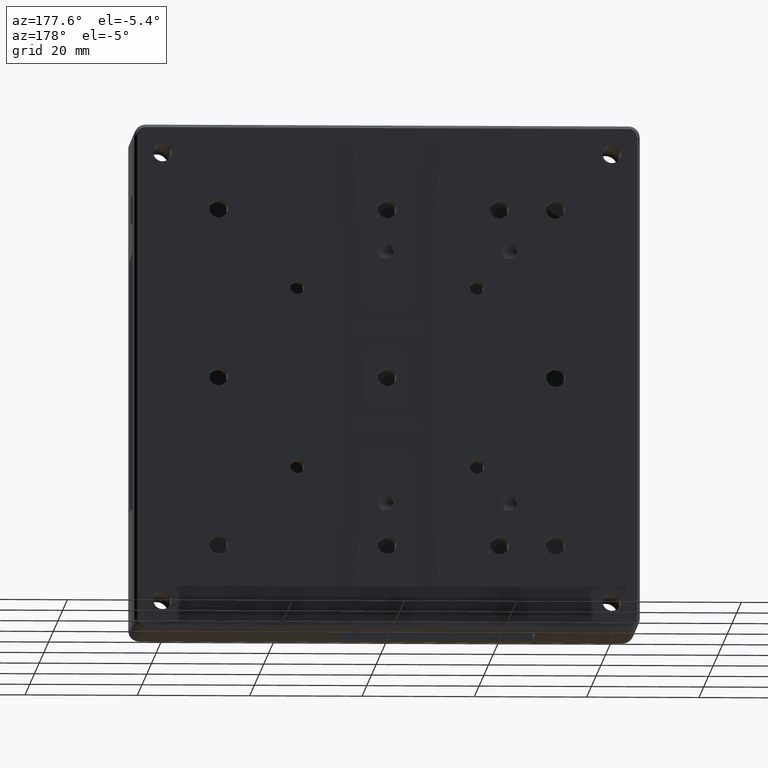
[diagram: clean part render]
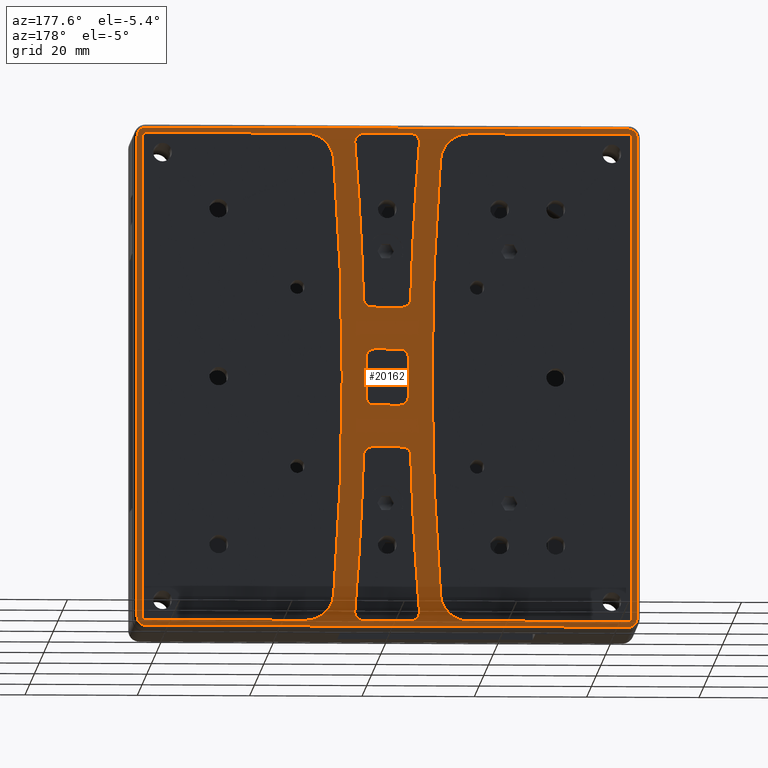
[diagram: same view with one face highlighted and labeled with its STEP entity id]
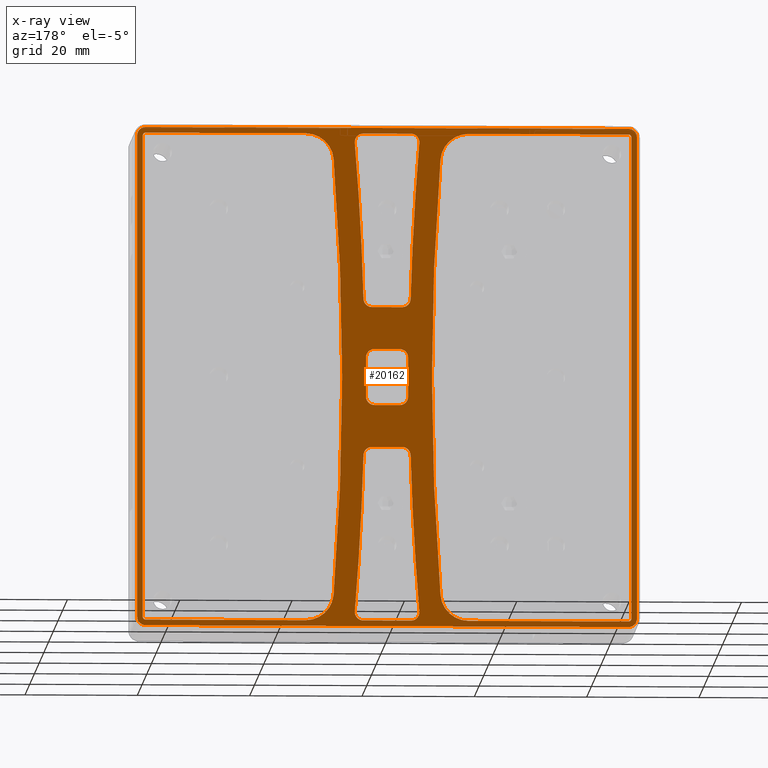
[diagram: x-ray of the same camera — body ghosted, the highlighted face saturated]
A machine part, auxiliary view. The second image highlights one B-rep face of the part: STEP entity #20162.
The next image is the same camera in x-ray: the body ghosted, the highlighted face saturated — about 0% of this face is hidden behind the body in this view.
In plain terms, the highlighted planar face has unit normal (-0, 1, 0).
Its self-contained STEP definition (entity closure, byte-faithful):
#87 = FACE_BOUND ( 'NONE', #9051, .T. ) ;
#194 = VERTEX_POINT ( 'NONE', #26351 ) ;
#293 = AXIS2_PLACEMENT_3D ( 'NONE', #30239, #11679, #33354 ) ;
#460 = CARTESIAN_POINT ( 'NONE',  ( 0.0000000000000000000, 6.500000000000000000, 43.49999999999997200 ) ) ;
#707 = DIRECTION ( 'NONE',  ( 0.0000000000000000000, -1.000000000000000000, 0.0000000000000000000 ) ) ;
#840 = DIRECTION ( 'NONE',  ( 0.0000000000000000000, 0.0000000000000000000, -1.000000000000000000 ) ) ;
#990 = CARTESIAN_POINT ( 'NONE',  ( -43.00000000000000000, 6.499999999991814500, -43.00000000000003600 ) ) ;
#994 = CARTESIAN_POINT ( 'NONE',  ( 44.50000000000000000, 6.500000003577042700, 42.99999998745997900 ) ) ;
#1019 = LINE ( 'NONE', #24774, #23783 ) ;
#1110 = DIRECTION ( 'NONE',  ( 0.0000000000000000000, 0.0000000000000000000, 1.000000000000000000 ) ) ;
#1168 = EDGE_CURVE ( 'NONE', #17841, #10541, #17685, .T. ) ;
#1195 = CARTESIAN_POINT ( 'NONE',  ( -508.0000000000000000, 6.500000000000000000, -3.220404438404000100E-014 ) ) ;
#1484 = VERTEX_POINT ( 'NONE', #36359 ) ;
#1685 = CARTESIAN_POINT ( 'NONE',  ( -4.193329263173839500, 6.499999999999999100, -13.95845697329189900 ) ) ;
#1746 = DIRECTION ( 'NONE',  ( 0.0000000000000000000, -1.000000000000000000, 0.0000000000000000000 ) ) ;
#1873 = DIRECTION ( 'NONE',  ( 1.000000000000000000, 0.0000000000000000000, 0.0000000000000000000 ) ) ;
#1901 = CARTESIAN_POINT ( 'NONE',  ( -4.247828788798000400, 6.499999999999999100, 43.49999999999997200 ) ) ;
#1904 = CARTESIAN_POINT ( 'NONE',  ( -43.50000000000000700, 6.500000000000000000, -3.220404438404000100E-014 ) ) ;
#2026 = FACE_BOUND ( 'NONE', #28135, .T. ) ;
#2306 = EDGE_CURVE ( 'NONE', #36177, #10229, #11324, .T. ) ;
#2388 = VECTOR ( 'NONE', #39015, 1000.000000000000000 ) ;
#2445 = CARTESIAN_POINT ( 'NONE',  ( 0.0000000000000000000, 6.500000000000000000, -12.50000000000003400 ) ) ;
#2450 = ORIENTED_EDGE ( 'NONE', *, *, #38250, .T. ) ;
#2559 = DIRECTION ( 'NONE',  ( -0.0000000000000000000, -1.000000000000000000, -0.0000000000000000000 ) ) ;
#2709 = VECTOR ( 'NONE', #38952, 1000.000000000000000 ) ;
#2735 = DIRECTION ( 'NONE',  ( 0.0000000000000000000, 1.000000000000000000, 0.0000000000000000000 ) ) ;
#3021 = AXIS2_PLACEMENT_3D ( 'NONE', #19213, #707, #22345 ) ;
#3120 = CARTESIAN_POINT ( 'NONE',  ( 4.247828788798000400, 6.499999999999999100, -42.00000000000003600 ) ) ;
#3297 = EDGE_CURVE ( 'NONE', #10541, #21967, #34041, .T. ) ;
#3450 = CIRCLE ( 'NONE', #5097, 1.499999999999999600 ) ;
#3451 = VERTEX_POINT ( 'NONE', #30017 ) ;
#3561 = DIRECTION ( 'NONE',  ( -1.000000000000000000, -0.0000000000000000000, -0.0000000000000000000 ) ) ;
#3572 = ORIENTED_EDGE ( 'NONE', *, *, #30360, .T. ) ;
#3635 = ORIENTED_EDGE ( 'NONE', *, *, #34225, .T. ) ;
#3946 = CARTESIAN_POINT ( 'NONE',  ( -3.750000000000000000, 6.500000000000000000, 3.499999999999968000 ) ) ;
#4091 = DIRECTION ( 'NONE',  ( -4.625929269361251400E-015, 0.0000000000000000000, -1.000000000000000000 ) ) ;
#4200 = CARTESIAN_POINT ( 'NONE',  ( -14.49949341465000100, 6.500000000000000000, 38.49999999999996400 ) ) ;
#4206 = LINE ( 'NONE', #6440, #19666 ) ;
#4244 = CIRCLE ( 'NONE', #25439, 0.5000000000000004400 ) ;
#4290 = DIRECTION ( 'NONE',  ( 0.0000000000000000000, 0.0000000000000000000, 1.000000000000000000 ) ) ;
#4471 = DIRECTION ( 'NONE',  ( 0.0000000000000000000, 1.000000000000000000, 0.0000000000000000000 ) ) ;
#4593 = EDGE_CURVE ( 'NONE', #27365, #15219, #23342, .T. ) ;
#4664 = CARTESIAN_POINT ( 'NONE',  ( -14.49949341465000100, 6.500000000000000000, 43.49999999999996400 ) ) ;
#4684 = DIRECTION ( 'NONE',  ( 0.0000000000000000000, 1.000000000000000000, 0.0000000000000000000 ) ) ;
#4760 = EDGE_CURVE ( 'NONE', #3451, #19000, #25765, .T. ) ;
#4881 = CIRCLE ( 'NONE', #16893, 1.500000000000001300 ) ;
#4982 = VECTOR ( 'NONE', #23735, 1000.000000000000000 ) ;
#5028 = CARTESIAN_POINT ( 'NONE',  ( -2.250000000000000400, 6.500000000000000000, 3.499999999999968000 ) ) ;
#5097 = AXIS2_PLACEMENT_3D ( 'NONE', #38161, #19598, #1110 ) ;
#5123 = LINE ( 'NONE', #29305, #20606 ) ;
#5155 = CARTESIAN_POINT ( 'NONE',  ( 2.693904647886000300, 6.499999999999999100, 12.49999999999996800 ) ) ;
#5190 = CARTESIAN_POINT ( 'NONE',  ( -43.50000000000000700, 6.500000000000000000, -43.00000000000003600 ) ) ;
#5466 = ORIENTED_EDGE ( 'NONE', *, *, #8633, .T. ) ;
#5475 = CARTESIAN_POINT ( 'NONE',  ( 43.00000000000000000, 6.500000000000000000, 43.49999999999997200 ) ) ;
#5530 = DIRECTION ( 'NONE',  ( 0.0000000000000000000, -1.000000000000000000, 0.0000000000000000000 ) ) ;
#5989 = VERTEX_POINT ( 'NONE', #4664 ) ;
#6112 = CIRCLE ( 'NONE', #3021, 1.500000000000001300 ) ;
#6136 = DIRECTION ( 'NONE',  ( -0.0000000000000000000, -1.000000000000000000, -0.0000000000000000000 ) ) ;
#6192 = CARTESIAN_POINT ( 'NONE',  ( -5.742642353223026000, 6.499999999999999100, 41.87537091988060200 ) ) ;
#6225 = DIRECTION ( 'NONE',  ( 1.734723475976805500E-015, 0.0000000000000000000, 1.000000000000000000 ) ) ;
#6293 = AXIS2_PLACEMENT_3D ( 'NONE', #21084, #2559, #24227 ) ;
#6332 = DIRECTION ( 'NONE',  ( 0.0000000000000000000, 0.0000000000000000000, 1.000000000000000000 ) ) ;
#6434 = EDGE_CURVE ( 'NONE', #37859, #31052, #16388, .T. ) ;
#6440 = CARTESIAN_POINT ( 'NONE',  ( 0.0000000000000000000, 6.500000000000000000, -43.50000000000003600 ) ) ;
#6479 = VERTEX_POINT ( 'NONE', #20887 ) ;
#6489 = AXIS2_PLACEMENT_3D ( 'NONE', #12816, #34501, #15928 ) ;
#6562 = ORIENTED_EDGE ( 'NONE', *, *, #12544, .T. ) ;
#6707 = VERTEX_POINT ( 'NONE', #21962 ) ;
#6760 = AXIS2_PLACEMENT_3D ( 'NONE', #28944, #10374, #32041 ) ;
#6780 = CARTESIAN_POINT ( 'NONE',  ( 5.742642353222877600, 6.499999999999999100, 41.87537091988062300 ) ) ;
#6832 = VERTEX_POINT ( 'NONE', #994 ) ;
#7062 = VERTEX_POINT ( 'NONE', #5155 ) ;
#7225 = VECTOR ( 'NONE', #17604, 1000.000000000000000 ) ;
#7290 = DIRECTION ( 'NONE',  ( 0.0000000000000000000, 0.0000000000000000000, 1.000000000000000000 ) ) ;
#7386 = AXIS2_PLACEMENT_3D ( 'NONE', #990, #22636, #4091 ) ;
#7524 = CARTESIAN_POINT ( 'NONE',  ( 0.0000000000000000000, 6.500000000000000000, 43.49999999999997200 ) ) ;
#7558 = AXIS2_PLACEMENT_3D ( 'NONE', #1195, #22844, #4290 ) ;
#7610 = CARTESIAN_POINT ( 'NONE',  ( -4.193329263174005600, 6.499999999999999100, 13.95845697329186000 ) ) ;
#7647 = ORIENTED_EDGE ( 'NONE', *, *, #35622, .T. ) ;
#7653 = CARTESIAN_POINT ( 'NONE',  ( -3.750000000000000000, 6.500000000000000000, -3.500000000000032400 ) ) ;
#7848 = CARTESIAN_POINT ( 'NONE',  ( 2.250000000000000400, 6.500000000000000000, 3.499999999999968000 ) ) ;
#8092 = CARTESIAN_POINT ( 'NONE',  ( 0.0000000000000000000, 6.500000000000000000, -5.000000000000032000 ) ) ;
#8155 = DIRECTION ( 'NONE',  ( 0.0000000000000000000, 0.0000000000000000000, 1.000000000000000000 ) ) ;
#8203 = ORIENTED_EDGE ( 'NONE', *, *, #23942, .F. ) ;
#8271 = VERTEX_POINT ( 'NONE', #22353 ) ;
#8313 = FACE_BOUND ( 'NONE', #31481, .T. ) ;
#8397 = EDGE_CURVE ( 'NONE', #18830, #37734, #19312, .T. ) ;
#8580 = ORIENTED_EDGE ( 'NONE', *, *, #17133, .T. ) ;
#8597 = DIRECTION ( 'NONE',  ( -1.000000000000000000, 0.0000000000000000000, -0.0000000000000000000 ) ) ;
#8633 = EDGE_CURVE ( 'NONE', #35391, #6707, #16872, .T. ) ;
#8676 = VERTEX_POINT ( 'NONE', #14929 ) ;
#8677 = CARTESIAN_POINT ( 'NONE',  ( 43.00000000000000000, 6.500000000000000000, -43.00000000000003600 ) ) ;
#8919 = LINE ( 'NONE', #31371, #24431 ) ;
#9051 = EDGE_LOOP ( 'NONE', ( #34568, #35107, #8580, #16377, #31911, #30700, #3635, #17097 ) ) ;
#9090 = CARTESIAN_POINT ( 'NONE',  ( -9.514639812774866800, 6.500000000000000000, -38.88888888888960300 ) ) ;
#9119 = CARTESIAN_POINT ( 'NONE',  ( 43.50000000000000700, 6.500000000000000000, 42.99999999999997200 ) ) ;
#9169 = EDGE_CURVE ( 'NONE', #31658, #12789, #25117, .T. ) ;
#9198 = CIRCLE ( 'NONE', #11249, 1.500000000000000000 ) ;
#9288 = VECTOR ( 'NONE', #10195, 1000.000000000000000 ) ;
#9353 = LINE ( 'NONE', #12069, #33095 ) ;
#9377 = CARTESIAN_POINT ( 'NONE',  ( -2.250000000000000400, 6.500000000000000000, -5.000000000000032000 ) ) ;
#9582 = CIRCLE ( 'NONE', #7386, 1.499999999970892600 ) ;
#9970 = CIRCLE ( 'NONE', #30209, 1.500000000000000000 ) ;
#10065 = CARTESIAN_POINT ( 'NONE',  ( -42.99999999574001200, 6.500000007267772200, 44.49999999636607800 ) ) ;
#10195 = DIRECTION ( 'NONE',  ( 0.0000000000000000000, -0.0000000000000000000, 1.000000000000000000 ) ) ;
#10229 = VERTEX_POINT ( 'NONE', #36496 ) ;
#10350 = EDGE_CURVE ( 'NONE', #28705, #8271, #4244, .T. ) ;
#10374 = DIRECTION ( 'NONE',  ( -0.0000000000000000000, -1.000000000000000000, -0.0000000000000000000 ) ) ;
#10380 = CARTESIAN_POINT ( 'NONE',  ( -43.50000000000000700, 6.500000000000000000, 42.99999999999997200 ) ) ;
#10541 = VERTEX_POINT ( 'NONE', #20445 ) ;
#10580 = CARTESIAN_POINT ( 'NONE',  ( -3.750000000000000000, 6.500000000000000000, -3.220404438404000100E-014 ) ) ;
#10961 = DIRECTION ( 'NONE',  ( 0.0000000000000000000, 0.0000000000000000000, 1.000000000000000000 ) ) ;
#10980 = CIRCLE ( 'NONE', #37587, 4.999999999999997300 ) ;
#11249 = AXIS2_PLACEMENT_3D ( 'NONE', #5028, #26725, #8155 ) ;
#11300 = EDGE_CURVE ( 'NONE', #12789, #35978, #32767, .T. ) ;
#11324 = LINE ( 'NONE', #14113, #35082 ) ;
#11325 = VECTOR ( 'NONE', #8597, 1000.000000000000000 ) ;
#11679 = DIRECTION ( 'NONE',  ( 0.0000000000000000000, 1.000000000000000000, 0.0000000000000000000 ) ) ;
#11782 = EDGE_CURVE ( 'NONE', #30978, #28705, #19131, .T. ) ;
#11794 = DIRECTION ( 'NONE',  ( 0.0000000000000000000, 0.0000000000000000000, 1.000000000000000000 ) ) ;
#11985 = CARTESIAN_POINT ( 'NONE',  ( -44.49999999998226500, 6.499999999991814500, -43.00000000000004300 ) ) ;
#12050 = CARTESIAN_POINT ( 'NONE',  ( -2.250000000000000400, 6.500000000000000000, -3.500000000000032000 ) ) ;
#12069 = CARTESIAN_POINT ( 'NONE',  ( 0.0000000000000000000, 6.500000000000000000, 12.49999999999996800 ) ) ;
#12309 = ORIENTED_EDGE ( 'NONE', *, *, #38896, .T. ) ;
#12544 = EDGE_CURVE ( 'NONE', #26011, #15819, #35119, .T. ) ;
#12604 = EDGE_CURVE ( 'NONE', #34653, #15497, #33172, .T. ) ;
#12738 = CARTESIAN_POINT ( 'NONE',  ( 0.0000000000000000000, 6.500000000000000000, -3.220404438404000100E-014 ) ) ;
#12789 = VERTEX_POINT ( 'NONE', #21707 ) ;
#12816 = CARTESIAN_POINT ( 'NONE',  ( 4.247828788798000400, 6.499999999999999100, 41.99999999999996400 ) ) ;
#12911 = DIRECTION ( 'NONE',  ( 0.0000000000000000000, -1.000000000000000000, 0.0000000000000000000 ) ) ;
#13097 = EDGE_CURVE ( 'NONE', #35182, #27713, #35079, .T. ) ;
#13160 = DIRECTION ( 'NONE',  ( -0.0000000000000000000, -1.000000000000000000, -0.0000000000000000000 ) ) ;
#13338 = VERTEX_POINT ( 'NONE', #10065 ) ;
#13365 = CIRCLE ( 'NONE', #39047, 1.499999999999999600 ) ;
#13399 = CARTESIAN_POINT ( 'NONE',  ( 508.0000000000000000, 6.500000000000000000, -3.220404438404000100E-014 ) ) ;
#13544 = VERTEX_POINT ( 'NONE', #35905 ) ;
#13578 = EDGE_CURVE ( 'NONE', #34820, #6832, #14177, .T. ) ;
#13678 = CARTESIAN_POINT ( 'NONE',  ( 2.250000000000000400, 6.500000000000000000, -3.500000000000032000 ) ) ;
#13755 = DIRECTION ( 'NONE',  ( 0.0000000000000000000, 1.000000000000000000, 0.0000000000000000000 ) ) ;
#13945 = AXIS2_PLACEMENT_3D ( 'NONE', #3120, #24803, #6225 ) ;
#13956 = ORIENTED_EDGE ( 'NONE', *, *, #8397, .F. ) ;
#14113 = CARTESIAN_POINT ( 'NONE',  ( 0.0000000000000000000, 6.500000000000000900, -44.50000000000003600 ) ) ;
#14167 = AXIS2_PLACEMENT_3D ( 'NONE', #14461, #36145, #17568 ) ;
#14177 = LINE ( 'NONE', #29822, #4982 ) ;
#14203 = AXIS2_PLACEMENT_3D ( 'NONE', #23035, #4471, #26174 ) ;
#14364 = EDGE_CURVE ( 'NONE', #35131, #38256, #24822, .T. ) ;
#14454 = CARTESIAN_POINT ( 'NONE',  ( 44.49999999633769200, 6.500000003662307800, -43.00000000000004300 ) ) ;
#14461 = CARTESIAN_POINT ( 'NONE',  ( -2.693904647886000300, 6.499999999999999100, -14.00000000000003400 ) ) ;
#14499 = CARTESIAN_POINT ( 'NONE',  ( 0.0000000000000000000, 6.500000000000000900, 44.49999999999996400 ) ) ;
#14626 = VERTEX_POINT ( 'NONE', #16877 ) ;
#14629 = DIRECTION ( 'NONE',  ( -0.0000000000000000000, -1.000000000000000000, -0.0000000000000000000 ) ) ;
#14676 = ORIENTED_EDGE ( 'NONE', *, *, #34269, .F. ) ;
#14785 = CARTESIAN_POINT ( 'NONE',  ( 4.247828788798000400, 6.499999999999999100, -43.50000000000003600 ) ) ;
#14922 = EDGE_LOOP ( 'NONE', ( #31613, #6562, #21574, #12309, #19076, #24600, #35799, #32397 ) ) ;
#14929 = CARTESIAN_POINT ( 'NONE',  ( -9.514639812777792500, 6.500000000000000000, 38.88888888888929800 ) ) ;
#15093 = DIRECTION ( 'NONE',  ( 1.000000000000000000, 0.0000000000000000000, -0.0000000000000000000 ) ) ;
#15118 = AXIS2_PLACEMENT_3D ( 'NONE', #31476, #12911, #34591 ) ;
#15150 = DIRECTION ( 'NONE',  ( 8.673617379884035500E-016, 0.0000000000000000000, 1.000000000000000000 ) ) ;
#15219 = VERTEX_POINT ( 'NONE', #35299 ) ;
#15345 = DIRECTION ( 'NONE',  ( 0.0000000000000000000, 1.000000000000000000, 0.0000000000000000000 ) ) ;
#15497 = VERTEX_POINT ( 'NONE', #19280 ) ;
#15541 = CIRCLE ( 'NONE', #22893, 1.500000000000000000 ) ;
#15769 = AXIS2_PLACEMENT_3D ( 'NONE', #4200, #25881, #7290 ) ;
#15819 = VERTEX_POINT ( 'NONE', #7610 ) ;
#15843 = DIRECTION ( 'NONE',  ( -0.0000000000000000000, 1.000000000000000000, 0.0000000000000000000 ) ) ;
#15856 = AXIS2_PLACEMENT_3D ( 'NONE', #23250, #4684, #26385 ) ;
#15928 = DIRECTION ( 'NONE',  ( 0.0000000000000000000, 0.0000000000000000000, -1.000000000000000000 ) ) ;
#16377 = ORIENTED_EDGE ( 'NONE', *, *, #4760, .T. ) ;
#16388 = LINE ( 'NONE', #10580, #23712 ) ;
#16408 = ORIENTED_EDGE ( 'NONE', *, *, #13097, .T. ) ;
#16502 = CARTESIAN_POINT ( 'NONE',  ( 43.00000000000000000, 6.500000000000000000, -43.50000000000003600 ) ) ;
#16510 = DIRECTION ( 'NONE',  ( 0.0000000000000000000, 0.0000000000000000000, 1.000000000000000000 ) ) ;
#16544 = ORIENTED_EDGE ( 'NONE', *, *, #11300, .T. ) ;
#16763 = VECTOR ( 'NONE', #1873, 1000.000000000000000 ) ;
#16794 = DIRECTION ( 'NONE',  ( 0.0000000000000000000, 0.0000000000000000000, 1.000000000000000000 ) ) ;
#16872 = LINE ( 'NONE', #20461, #2388 ) ;
#16877 = CARTESIAN_POINT ( 'NONE',  ( -4.247828788798000400, 6.499999999999999100, -43.50000000000003600 ) ) ;
#16893 = AXIS2_PLACEMENT_3D ( 'NONE', #24701, #6136, #27817 ) ;
#16897 = DIRECTION ( 'NONE',  ( -0.0000000000000000000, 1.000000000000000000, -0.0000000000000000000 ) ) ;
#16904 = ORIENTED_EDGE ( 'NONE', *, *, #34316, .T. ) ;
#16948 = CARTESIAN_POINT ( 'NONE',  ( 3.750000000000000000, 6.500000000000000000, 3.499999999999968000 ) ) ;
#17030 = CIRCLE ( 'NONE', #6760, 0.5000000000000004400 ) ;
#17097 = ORIENTED_EDGE ( 'NONE', *, *, #6434, .T. ) ;
#17133 = EDGE_CURVE ( 'NONE', #39815, #3451, #9970, .T. ) ;
#17153 = CIRCLE ( 'NONE', #14167, 1.499999999999999600 ) ;
#17568 = DIRECTION ( 'NONE',  ( 0.0000000000000000000, 0.0000000000000000000, 1.000000000000000000 ) ) ;
#17604 = DIRECTION ( 'NONE',  ( -1.000000000000000000, -0.0000000000000000000, 0.0000000000000000000 ) ) ;
#17634 = ORIENTED_EDGE ( 'NONE', *, *, #20392, .T. ) ;
#17685 = CIRCLE ( 'NONE', #6489, 1.500000000000001300 ) ;
#17726 = CIRCLE ( 'NONE', #34174, 1.500000000000000000 ) ;
#17841 = VERTEX_POINT ( 'NONE', #6780 ) ;
#17883 = CARTESIAN_POINT ( 'NONE',  ( 2.250000000000000400, 6.500000000000000000, 4.999999999999968000 ) ) ;
#17917 = AXIS2_PLACEMENT_3D ( 'NONE', #24101, #5530, #27221 ) ;
#18181 = CARTESIAN_POINT ( 'NONE',  ( 4.193329263173895400, 6.499999999999999100, 13.95845697329176400 ) ) ;
#18494 = VECTOR ( 'NONE', #26118, 1000.000000000000000 ) ;
#18619 = DIRECTION ( 'NONE',  ( 1.000000000000000000, 0.0000000000000000000, 0.0000000000000000000 ) ) ;
#18783 = ORIENTED_EDGE ( 'NONE', *, *, #13578, .F. ) ;
#18830 = VERTEX_POINT ( 'NONE', #22253 ) ;
#18960 = VERTEX_POINT ( 'NONE', #26077 ) ;
#19000 = VERTEX_POINT ( 'NONE', #16948 ) ;
#19076 = ORIENTED_EDGE ( 'NONE', *, *, #20318, .T. ) ;
#19131 = LINE ( 'NONE', #1904, #2709 ) ;
#19213 = CARTESIAN_POINT ( 'NONE',  ( -4.247828788798000400, 6.499999999999999100, -42.00000000000003600 ) ) ;
#19271 = ORIENTED_EDGE ( 'NONE', *, *, #21890, .T. ) ;
#19280 = CARTESIAN_POINT ( 'NONE',  ( 14.49949341465000100, 6.500000000000000000, 43.49999999999997200 ) ) ;
#19311 = VERTEX_POINT ( 'NONE', #9377 ) ;
#19312 = CIRCLE ( 'NONE', #14203, 0.5000000000000004400 ) ;
#19341 = DIRECTION ( 'NONE',  ( 0.0000000000000000000, -1.000000000000000000, 0.0000000000000000000 ) ) ;
#19598 = DIRECTION ( 'NONE',  ( -0.0000000000000000000, -1.000000000000000000, -0.0000000000000000000 ) ) ;
#19666 = VECTOR ( 'NONE', #18619, 1000.000000000000000 ) ;
#20162 = ADVANCED_FACE ( 'NONE', ( #2026, #24797, #8313, #87, #32050, #23822 ), #31313, .T. ) ;
#20239 = CARTESIAN_POINT ( 'NONE',  ( 43.00000000000000000, 6.500000007324615600, -43.00000000000003600 ) ) ;
#20318 = EDGE_CURVE ( 'NONE', #7062, #26411, #3450, .T. ) ;
#20392 = EDGE_CURVE ( 'NONE', #6707, #13338, #25256, .T. ) ;
#20445 = CARTESIAN_POINT ( 'NONE',  ( 4.247828788798000400, 6.499999999999999100, 43.49999999999997200 ) ) ;
#20461 = CARTESIAN_POINT ( 'NONE',  ( -44.50000000000000000, 6.500000000000000000, -3.220404438404000100E-014 ) ) ;
#20554 = ORIENTED_EDGE ( 'NONE', *, *, #11782, .T. ) ;
#20606 = VECTOR ( 'NONE', #32408, 1000.000000000000000 ) ;
#20757 = EDGE_CURVE ( 'NONE', #194, #37734, #1019, .T. ) ;
#20887 = CARTESIAN_POINT ( 'NONE',  ( -2.693904647886000700, 6.499999999999999100, 12.49999999999996800 ) ) ;
#21084 = CARTESIAN_POINT ( 'NONE',  ( -14.49949341465000100, 6.500000000000000000, -38.50000000000003600 ) ) ;
#21258 = CARTESIAN_POINT ( 'NONE',  ( 14.49949341465000100, 6.500000000000000000, -38.50000000000003600 ) ) ;
#21574 = ORIENTED_EDGE ( 'NONE', *, *, #36638, .T. ) ;
#21650 = AXIS2_PLACEMENT_3D ( 'NONE', #32327, #13755, #35455 ) ;
#21700 = AXIS2_PLACEMENT_3D ( 'NONE', #35484, #16897, #38557 ) ;
#21707 = CARTESIAN_POINT ( 'NONE',  ( 5.742642353223026000, 6.499999999999999100, -41.87537091988068700 ) ) ;
#21890 = EDGE_CURVE ( 'NONE', #8676, #5989, #39171, .T. ) ;
#21962 = CARTESIAN_POINT ( 'NONE',  ( -44.49999999636543200, 6.500000003603418000, 42.99999999999997200 ) ) ;
#21967 = VERTEX_POINT ( 'NONE', #1901 ) ;
#22253 = CARTESIAN_POINT ( 'NONE',  ( 43.00000000000000000, 6.500000000000000000, 43.49999999999997200 ) ) ;
#22345 = DIRECTION ( 'NONE',  ( 0.0000000000000000000, 0.0000000000000000000, -1.000000000000000000 ) ) ;
#22353 = CARTESIAN_POINT ( 'NONE',  ( -43.00000000000000000, 6.500000000000000000, -43.50000000000003600 ) ) ;
#22520 = ORIENTED_EDGE ( 'NONE', *, *, #32961, .T. ) ;
#22545 = CARTESIAN_POINT ( 'NONE',  ( 2.693904647886000700, 6.499999999999999100, -12.50000000000003400 ) ) ;
#22636 = DIRECTION ( 'NONE',  ( -0.0000000000000000000, 1.000000000000000000, -0.0000000000000000000 ) ) ;
#22844 = DIRECTION ( 'NONE',  ( 0.0000000000000000000, 1.000000000000000000, 0.0000000000000000000 ) ) ;
#22893 = AXIS2_PLACEMENT_3D ( 'NONE', #12050, #33727, #15150 ) ;
#22988 = CIRCLE ( 'NONE', #37279, 500.0000000000000000 ) ;
#23035 = CARTESIAN_POINT ( 'NONE',  ( 43.00000000000000000, 6.500000000000000000, 42.99999999999997200 ) ) ;
#23250 = CARTESIAN_POINT ( 'NONE',  ( 14.49949341465000100, 6.500000000000000000, 38.49999999999996400 ) ) ;
#23337 = ORIENTED_EDGE ( 'NONE', *, *, #38481, .T. ) ;
#23342 = CIRCLE ( 'NONE', #29155, 504.0000000000000000 ) ;
#23380 = VERTEX_POINT ( 'NONE', #17883 ) ;
#23395 = DIRECTION ( 'NONE',  ( 0.0000000000000000000, 0.0000000000000000000, -1.000000000000000000 ) ) ;
#23445 = EDGE_CURVE ( 'NONE', #35182, #37181, #10980, .T. ) ;
#23712 = VECTOR ( 'NONE', #35370, 1000.000000000000000 ) ;
#23735 = DIRECTION ( 'NONE',  ( 0.0000000000000000000, -0.0000000000000000000, 1.000000000000000000 ) ) ;
#23783 = VECTOR ( 'NONE', #6332, 1000.000000000000000 ) ;
#23822 = FACE_OUTER_BOUND ( 'NONE', #27146, .T. ) ;
#23846 = VECTOR ( 'NONE', #33324, 1000.000000000000000 ) ;
#23942 = EDGE_CURVE ( 'NONE', #6832, #18960, #39336, .T. ) ;
#24101 = CARTESIAN_POINT ( 'NONE',  ( 43.00000000000000000, 6.500000007154085300, 42.99999999999997200 ) ) ;
#24185 = EDGE_CURVE ( 'NONE', #13544, #30978, #17030, .T. ) ;
#24227 = DIRECTION ( 'NONE',  ( -1.734723475976808100E-015, 0.0000000000000000000, 1.000000000000000000 ) ) ;
#24404 = DIRECTION ( 'NONE',  ( 0.0000000000000000000, 0.0000000000000000000, 1.000000000000000000 ) ) ;
#24431 = VECTOR ( 'NONE', #34481, 1000.000000000000000 ) ;
#24600 = ORIENTED_EDGE ( 'NONE', *, *, #28047, .T. ) ;
#24700 = LINE ( 'NONE', #14499, #7225 ) ;
#24701 = CARTESIAN_POINT ( 'NONE',  ( -4.247828788798000400, 6.499999999999999100, 41.99999999999996400 ) ) ;
#24774 = CARTESIAN_POINT ( 'NONE',  ( 43.50000000000000700, 6.500000000000000000, -43.00000000000003600 ) ) ;
#24797 = FACE_BOUND ( 'NONE', #14922, .T. ) ;
#24803 = DIRECTION ( 'NONE',  ( -0.0000000000000000000, -1.000000000000000000, -0.0000000000000000000 ) ) ;
#24822 = LINE ( 'NONE', #2445, #23846 ) ;
#24924 = ORIENTED_EDGE ( 'NONE', *, *, #36625, .T. ) ;
#24958 = EDGE_CURVE ( 'NONE', #21967, #26011, #4881, .T. ) ;
#25117 = CIRCLE ( 'NONE', #13945, 1.500000000000001300 ) ;
#25256 = CIRCLE ( 'NONE', #21700, 1.499999992682209200 ) ;
#25439 = AXIS2_PLACEMENT_3D ( 'NONE', #31743, #13160, #34879 ) ;
#25520 = EDGE_LOOP ( 'NONE', ( #16904, #19271, #23337, #30285, #20554, #25846, #37815, #31815 ) ) ;
#25697 = ORIENTED_EDGE ( 'NONE', *, *, #39617, .T. ) ;
#25725 = CARTESIAN_POINT ( 'NONE',  ( -14.49949341465000100, 6.500000000000000000, -43.50000000000002800 ) ) ;
#25765 = LINE ( 'NONE', #31870, #9288 ) ;
#25846 = ORIENTED_EDGE ( 'NONE', *, *, #10350, .T. ) ;
#25850 = EDGE_CURVE ( 'NONE', #27952, #34398, #34394, .T. ) ;
#25881 = DIRECTION ( 'NONE',  ( -0.0000000000000000000, -1.000000000000000000, -0.0000000000000000000 ) ) ;
#25964 = CARTESIAN_POINT ( 'NONE',  ( 14.49949341465000100, 6.500000000000000000, -43.50000000000002800 ) ) ;
#26011 = VERTEX_POINT ( 'NONE', #6192 ) ;
#26077 = CARTESIAN_POINT ( 'NONE',  ( 43.00000000000000000, 6.500000003546575500, 44.49999999645066100 ) ) ;
#26118 = DIRECTION ( 'NONE',  ( -1.000000000000000000, -0.0000000000000000000, -0.0000000000000000000 ) ) ;
#26174 = DIRECTION ( 'NONE',  ( 0.0000000000000000000, 0.0000000000000000000, 1.000000000000000000 ) ) ;
#26221 = CARTESIAN_POINT ( 'NONE',  ( 2.250000000000000400, 6.500000000000000000, -5.000000000000032000 ) ) ;
#26351 = CARTESIAN_POINT ( 'NONE',  ( 43.50000000000000700, 6.500000000000000000, -43.00000000000003600 ) ) ;
#26385 = DIRECTION ( 'NONE',  ( 0.0000000000000000000, 0.0000000000000000000, 1.000000000000000000 ) ) ;
#26411 = VERTEX_POINT ( 'NONE', #18181 ) ;
#26704 = AXIS2_PLACEMENT_3D ( 'NONE', #8677, #30354, #11794 ) ;
#26725 = DIRECTION ( 'NONE',  ( -0.0000000000000000000, -1.000000000000000000, -0.0000000000000000000 ) ) ;
#26843 = VECTOR ( 'NONE', #15093, 1000.000000000000000 ) ;
#26867 = ORIENTED_EDGE ( 'NONE', *, *, #38829, .F. ) ;
#27146 = EDGE_LOOP ( 'NONE', ( #39626, #7647, #5466, #17634, #14676, #8203, #18783, #38302 ) ) ;
#27221 = DIRECTION ( 'NONE',  ( 0.0000000000000000000, 0.0000000000000000000, -1.000000000000000000 ) ) ;
#27365 = VERTEX_POINT ( 'NONE', #1685 ) ;
#27713 = VERTEX_POINT ( 'NONE', #16502 ) ;
#27815 = LINE ( 'NONE', #5475, #11325 ) ;
#27817 = DIRECTION ( 'NONE',  ( 0.0000000000000000000, 0.0000000000000000000, 1.000000000000000000 ) ) ;
#27889 = AXIS2_PLACEMENT_3D ( 'NONE', #33207, #14629, #36314 ) ;
#27952 = VERTEX_POINT ( 'NONE', #25725 ) ;
#28047 = EDGE_CURVE ( 'NONE', #26411, #17841, #37137, .T. ) ;
#28070 = ORIENTED_EDGE ( 'NONE', *, *, #9169, .T. ) ;
#28135 = EDGE_LOOP ( 'NONE', ( #33340, #29057, #16408, #26867, #28394, #13956, #2450, #28559 ) ) ;
#28163 = EDGE_CURVE ( 'NONE', #19311, #39815, #33282, .T. ) ;
#28394 = ORIENTED_EDGE ( 'NONE', *, *, #20757, .T. ) ;
#28559 = ORIENTED_EDGE ( 'NONE', *, *, #12604, .F. ) ;
#28564 = EDGE_CURVE ( 'NONE', #23380, #1484, #5123, .T. ) ;
#28705 = VERTEX_POINT ( 'NONE', #5190 ) ;
#28843 = CARTESIAN_POINT ( 'NONE',  ( 9.514639812776337600, 6.500000000000000000, 38.88888888888941200 ) ) ;
#28852 = ORIENTED_EDGE ( 'NONE', *, *, #4593, .T. ) ;
#28916 = CARTESIAN_POINT ( 'NONE',  ( -43.00000000000000700, 6.499999999995907300, -44.50000000000412800 ) ) ;
#28944 = CARTESIAN_POINT ( 'NONE',  ( -43.00000000000000000, 6.500000000000000000, 42.99999999999997200 ) ) ;
#29057 = ORIENTED_EDGE ( 'NONE', *, *, #23445, .F. ) ;
#29155 = AXIS2_PLACEMENT_3D ( 'NONE', #33925, #15345, #37006 ) ;
#29240 = VECTOR ( 'NONE', #3561, 1000.000000000000000 ) ;
#29305 = CARTESIAN_POINT ( 'NONE',  ( 0.0000000000000000000, 6.500000000000000000, 4.999999999999968000 ) ) ;
#29524 = DIRECTION ( 'NONE',  ( -0.0000000000000000000, -1.000000000000000000, -0.0000000000000000000 ) ) ;
#29822 = CARTESIAN_POINT ( 'NONE',  ( 44.50000000000000000, 6.500000000000000900, -3.220404438404000100E-014 ) ) ;
#30017 = CARTESIAN_POINT ( 'NONE',  ( 3.750000000000000000, 6.500000000000000000, -3.500000000000032000 ) ) ;
#30209 = AXIS2_PLACEMENT_3D ( 'NONE', #13678, #35381, #16794 ) ;
#30218 = LINE ( 'NONE', #460, #29240 ) ;
#30239 = CARTESIAN_POINT ( 'NONE',  ( 508.0000000000000000, 6.500000000000000000, -2.133683880567400200E-013 ) ) ;
#30285 = ORIENTED_EDGE ( 'NONE', *, *, #24185, .T. ) ;
#30354 = DIRECTION ( 'NONE',  ( 0.0000000000000000000, 1.000000000000000000, 0.0000000000000000000 ) ) ;
#30360 = EDGE_CURVE ( 'NONE', #38256, #27365, #17153, .T. ) ;
#30402 = CARTESIAN_POINT ( 'NONE',  ( -2.693904647886000300, 6.499999999999999100, -12.50000000000003400 ) ) ;
#30606 = CIRCLE ( 'NONE', #15118, 1.499999999999999600 ) ;
#30648 = CIRCLE ( 'NONE', #38328, 1.499999992694935000 ) ;
#30700 = ORIENTED_EDGE ( 'NONE', *, *, #28564, .T. ) ;
#30810 = AXIS2_PLACEMENT_3D ( 'NONE', #12738, #15843, #37512 ) ;
#30978 = VERTEX_POINT ( 'NONE', #10380 ) ;
#31052 = VERTEX_POINT ( 'NONE', #7653 ) ;
#31313 = PLANE ( 'NONE',  #30810 ) ;
#31371 = CARTESIAN_POINT ( 'NONE',  ( 0.0000000000000000000, 6.500000000000000000, -43.50000000000003600 ) ) ;
#31476 = CARTESIAN_POINT ( 'NONE',  ( 2.693904647886000300, 6.499999999999999100, -14.00000000000003400 ) ) ;
#31481 = EDGE_LOOP ( 'NONE', ( #3572, #28852, #24924, #25697, #28070, #16544, #22520, #36598 ) ) ;
#31613 = ORIENTED_EDGE ( 'NONE', *, *, #24958, .T. ) ;
#31658 = VERTEX_POINT ( 'NONE', #14785 ) ;
#31743 = CARTESIAN_POINT ( 'NONE',  ( -43.00000000000000000, 6.500000000000000000, -43.00000000000003600 ) ) ;
#31815 = ORIENTED_EDGE ( 'NONE', *, *, #25850, .T. ) ;
#31870 = CARTESIAN_POINT ( 'NONE',  ( 3.750000000000000000, 6.500000000000000000, -3.220404438404000100E-014 ) ) ;
#31911 = ORIENTED_EDGE ( 'NONE', *, *, #36807, .T. ) ;
#32041 = DIRECTION ( 'NONE',  ( 0.0000000000000000000, 0.0000000000000000000, 1.000000000000000000 ) ) ;
#32050 = FACE_BOUND ( 'NONE', #25520, .T. ) ;
#32235 = EDGE_CURVE ( 'NONE', #31052, #19311, #15541, .T. ) ;
#32327 = CARTESIAN_POINT ( 'NONE',  ( 508.0000000000000000, 6.500000000000000000, -2.133683880567400200E-013 ) ) ;
#32397 = ORIENTED_EDGE ( 'NONE', *, *, #3297, .T. ) ;
#32408 = DIRECTION ( 'NONE',  ( -1.000000000000000000, -0.0000000000000000000, -0.0000000000000000000 ) ) ;
#32767 = CIRCLE ( 'NONE', #293, 504.0000000000000000 ) ;
#32825 = DIRECTION ( 'NONE',  ( 1.000000000000000000, -0.0000000000000000000, 0.0000000000000000000 ) ) ;
#32933 = CIRCLE ( 'NONE', #27889, 500.0000000000000000 ) ;
#32961 = EDGE_CURVE ( 'NONE', #35978, #35131, #30606, .T. ) ;
#33095 = VECTOR ( 'NONE', #33747, 1000.000000000000000 ) ;
#33172 = CIRCLE ( 'NONE', #15856, 4.999999999999997300 ) ;
#33207 = CARTESIAN_POINT ( 'NONE',  ( -508.0000000000000000, 6.500000000000000000, -3.220404438404000100E-014 ) ) ;
#33282 = LINE ( 'NONE', #8092, #16763 ) ;
#33324 = DIRECTION ( 'NONE',  ( -1.000000000000000000, -0.0000000000000000000, -0.0000000000000000000 ) ) ;
#33340 = ORIENTED_EDGE ( 'NONE', *, *, #37893, .F. ) ;
#33354 = DIRECTION ( 'NONE',  ( 0.0000000000000000000, 0.0000000000000000000, 1.000000000000000000 ) ) ;
#33727 = DIRECTION ( 'NONE',  ( -0.0000000000000000000, -1.000000000000000000, -0.0000000000000000000 ) ) ;
#33747 = DIRECTION ( 'NONE',  ( 1.000000000000000000, 0.0000000000000000000, 0.0000000000000000000 ) ) ;
#33925 = CARTESIAN_POINT ( 'NONE',  ( -508.0000000000000000, 6.500000000000000000, -3.220404438404000100E-014 ) ) ;
#34041 = LINE ( 'NONE', #7524, #18494 ) ;
#34174 = AXIS2_PLACEMENT_3D ( 'NONE', #7848, #29524, #10961 ) ;
#34219 = CARTESIAN_POINT ( 'NONE',  ( 4.193329263174117500, 6.499999999999999100, -13.95845697329191600 ) ) ;
#34225 = EDGE_CURVE ( 'NONE', #1484, #37859, #9198, .T. ) ;
#34269 = EDGE_CURVE ( 'NONE', #18960, #13338, #24700, .T. ) ;
#34316 = EDGE_CURVE ( 'NONE', #34398, #8676, #32933, .T. ) ;
#34394 = CIRCLE ( 'NONE', #6293, 4.999999999999997300 ) ;
#34398 = VERTEX_POINT ( 'NONE', #9090 ) ;
#34481 = DIRECTION ( 'NONE',  ( 1.000000000000000000, 0.0000000000000000000, 0.0000000000000000000 ) ) ;
#34501 = DIRECTION ( 'NONE',  ( 0.0000000000000000000, -1.000000000000000000, 0.0000000000000000000 ) ) ;
#34568 = ORIENTED_EDGE ( 'NONE', *, *, #32235, .T. ) ;
#34591 = DIRECTION ( 'NONE',  ( 0.0000000000000000000, 0.0000000000000000000, -1.000000000000000000 ) ) ;
#34653 = VERTEX_POINT ( 'NONE', #28843 ) ;
#34820 = VERTEX_POINT ( 'NONE', #14454 ) ;
#34879 = DIRECTION ( 'NONE',  ( 0.0000000000000000000, 0.0000000000000000000, 1.000000000000000000 ) ) ;
#35079 = LINE ( 'NONE', #36767, #26843 ) ;
#35082 = VECTOR ( 'NONE', #32825, 1000.000000000000000 ) ;
#35107 = ORIENTED_EDGE ( 'NONE', *, *, #28163, .T. ) ;
#35110 = DIRECTION ( 'NONE',  ( 0.0000000000000000000, 1.000000000000000000, 0.0000000000000000000 ) ) ;
#35119 = CIRCLE ( 'NONE', #7558, 504.0000000000000000 ) ;
#35131 = VERTEX_POINT ( 'NONE', #22545 ) ;
#35182 = VERTEX_POINT ( 'NONE', #25964 ) ;
#35299 = CARTESIAN_POINT ( 'NONE',  ( -5.742642353222952200, 6.499999999999999100, -41.87537091988070200 ) ) ;
#35370 = DIRECTION ( 'NONE',  ( -0.0000000000000000000, 0.0000000000000000000, -1.000000000000000000 ) ) ;
#35381 = DIRECTION ( 'NONE',  ( -0.0000000000000000000, -1.000000000000000000, -0.0000000000000000000 ) ) ;
#35391 = VERTEX_POINT ( 'NONE', #11985 ) ;
#35455 = DIRECTION ( 'NONE',  ( 0.0000000000000000000, 0.0000000000000000000, 1.000000000000000000 ) ) ;
#35484 = CARTESIAN_POINT ( 'NONE',  ( -43.00000000000000000, 6.500000007267772200, 42.99999999999997200 ) ) ;
#35622 = EDGE_CURVE ( 'NONE', #36177, #35391, #9582, .T. ) ;
#35799 = ORIENTED_EDGE ( 'NONE', *, *, #1168, .T. ) ;
#35905 = CARTESIAN_POINT ( 'NONE',  ( -43.00000000000000000, 6.500000000000000000, 43.49999999999997200 ) ) ;
#35978 = VERTEX_POINT ( 'NONE', #34219 ) ;
#36145 = DIRECTION ( 'NONE',  ( -0.0000000000000000000, -1.000000000000000000, -0.0000000000000000000 ) ) ;
#36177 = VERTEX_POINT ( 'NONE', #28916 ) ;
#36314 = DIRECTION ( 'NONE',  ( -6.217248937900876600E-015, 0.0000000000000000000, 1.000000000000000000 ) ) ;
#36359 = CARTESIAN_POINT ( 'NONE',  ( -2.250000000000000400, 6.500000000000000000, 4.999999999999968000 ) ) ;
#36496 = CARTESIAN_POINT ( 'NONE',  ( 42.99999999574001200, 6.500000003662307800, -44.49999999634750500 ) ) ;
#36598 = ORIENTED_EDGE ( 'NONE', *, *, #14364, .T. ) ;
#36625 = EDGE_CURVE ( 'NONE', #15219, #14626, #6112, .T. ) ;
#36638 = EDGE_CURVE ( 'NONE', #15819, #6479, #13365, .T. ) ;
#36767 = CARTESIAN_POINT ( 'NONE',  ( 14.49949341465000100, 6.500000000000000000, -43.50000000000003600 ) ) ;
#36807 = EDGE_CURVE ( 'NONE', #19000, #23380, #17726, .T. ) ;
#36962 = CIRCLE ( 'NONE', #26704, 0.5000000000000004400 ) ;
#37006 = DIRECTION ( 'NONE',  ( 0.0000000000000000000, 0.0000000000000000000, 1.000000000000000000 ) ) ;
#37137 = CIRCLE ( 'NONE', #21650, 504.0000000000000000 ) ;
#37181 = VERTEX_POINT ( 'NONE', #38120 ) ;
#37279 = AXIS2_PLACEMENT_3D ( 'NONE', #13399, #35110, #16510 ) ;
#37512 = DIRECTION ( 'NONE',  ( 0.0000000000000000000, -0.0000000000000000000, 1.000000000000000000 ) ) ;
#37587 = AXIS2_PLACEMENT_3D ( 'NONE', #21258, #2735, #24404 ) ;
#37734 = VERTEX_POINT ( 'NONE', #9119 ) ;
#37815 = ORIENTED_EDGE ( 'NONE', *, *, #38082, .T. ) ;
#37859 = VERTEX_POINT ( 'NONE', #3946 ) ;
#37893 = EDGE_CURVE ( 'NONE', #37181, #34653, #22988, .T. ) ;
#37899 = CARTESIAN_POINT ( 'NONE',  ( -2.693904647886000300, 6.499999999999999100, 13.99999999999996800 ) ) ;
#38082 = EDGE_CURVE ( 'NONE', #8271, #27952, #8919, .T. ) ;
#38120 = CARTESIAN_POINT ( 'NONE',  ( 9.514639812776337600, 6.500000000000000000, -38.88888888888948300 ) ) ;
#38161 = CARTESIAN_POINT ( 'NONE',  ( 2.693904647886000300, 6.499999999999999100, 13.99999999999996800 ) ) ;
#38250 = EDGE_CURVE ( 'NONE', #18830, #15497, #27815, .T. ) ;
#38256 = VERTEX_POINT ( 'NONE', #30402 ) ;
#38302 = ORIENTED_EDGE ( 'NONE', *, *, #39329, .F. ) ;
#38328 = AXIS2_PLACEMENT_3D ( 'NONE', #20239, #1746, #23395 ) ;
#38481 = EDGE_CURVE ( 'NONE', #5989, #13544, #30218, .T. ) ;
#38557 = DIRECTION ( 'NONE',  ( 0.0000000000000000000, 0.0000000000000000000, -1.000000000000000000 ) ) ;
#38829 = EDGE_CURVE ( 'NONE', #194, #27713, #36962, .T. ) ;
#38896 = EDGE_CURVE ( 'NONE', #6479, #7062, #9353, .T. ) ;
#38952 = DIRECTION ( 'NONE',  ( -0.0000000000000000000, 0.0000000000000000000, -1.000000000000000000 ) ) ;
#39015 = DIRECTION ( 'NONE',  ( 0.0000000000000000000, -0.0000000000000000000, 1.000000000000000000 ) ) ;
#39047 = AXIS2_PLACEMENT_3D ( 'NONE', #37899, #19341, #840 ) ;
#39171 = CIRCLE ( 'NONE', #15769, 4.999999999999997300 ) ;
#39329 = EDGE_CURVE ( 'NONE', #10229, #34820, #30648, .T. ) ;
#39336 = CIRCLE ( 'NONE', #17917, 1.499999992852739400 ) ;
#39617 = EDGE_CURVE ( 'NONE', #14626, #31658, #4206, .T. ) ;
#39626 = ORIENTED_EDGE ( 'NONE', *, *, #2306, .F. ) ;
#39815 = VERTEX_POINT ( 'NONE', #26221 ) ;